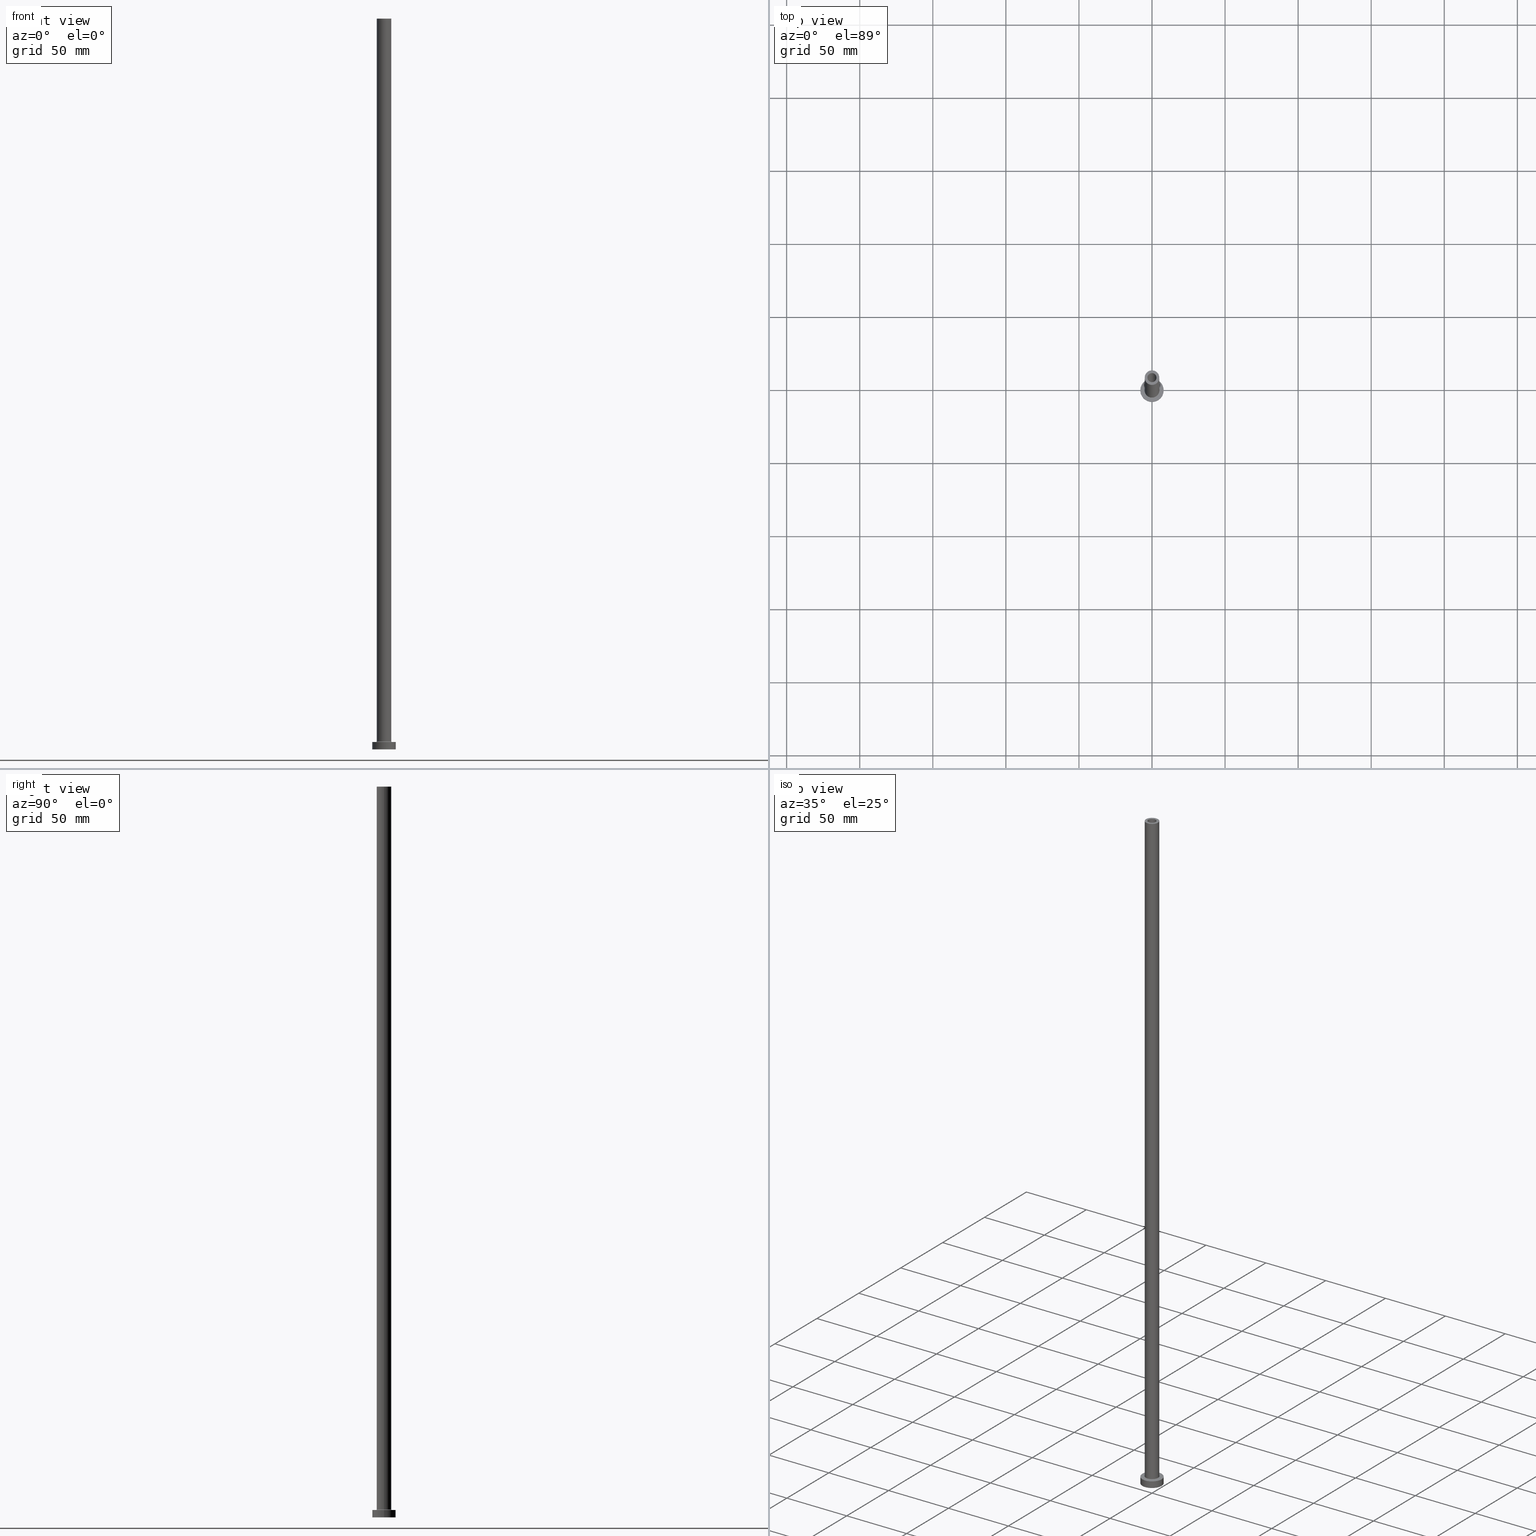
[diagram: canonical four-view strip — front | top / right | iso, engineering-drawing reading convention]
A machine part, canonical four-view strip (front | top / right | iso — engineering-drawing reading convention). The complete STEP part file that produces these views, byte-faithful:
ISO-10303-21;
HEADER;
FILE_DESCRIPTION (( 'STEP AP203' ),
    '1' );
FILE_NAME ('a1cd.STEP',
    '2023-02-13T14:30:09',
    ( '' ),
    ( '' ),
    'SwSTEP 2.0',
    'SolidWorks 2019',
    '' );
FILE_SCHEMA (( 'CONFIG_CONTROL_DESIGN' ));
ENDSEC;

DATA;
#1 = CARTESIAN_POINT ( 'NONE',  ( 0.000000000000000000, 0.000000000000000000, 500.0000000000000000 ) ) ;
#2 = DIRECTION ( 'NONE',  ( 0.000000000000000000, 0.000000000000000000, 1.000000000000000000 ) ) ;
#3 = APPROVAL ( #22, 'NEUR�EN�' ) ;
#4 = MANIFOLD_SOLID_BREP ( 'Odebrat vysunut�m4', #450 ) ;
#5 = DIRECTION ( 'NONE',  ( -0.000000000000000000, -0.000000000000000000, -1.000000000000000000 ) ) ;
#6 = CARTESIAN_POINT ( 'NONE',  ( 0.000000000000000000, 0.000000000000000000, 500.0000000000000000 ) ) ;
#7 = ADVANCED_FACE ( 'NONE', ( #281, #168 ), #81, .T. ) ;
#8 = CIRCLE ( 'NONE', #251, 3.250000000000000444 ) ;
#9 = DIRECTION ( 'NONE',  ( 1.000000000000000000, 0.000000000000000000, 0.000000000000000000 ) ) ;
#10 = FACE_OUTER_BOUND ( 'NONE', #208, .T. ) ;
#11 = DIRECTION ( 'NONE',  ( 0.000000000000000000, -1.000000000000000000, 0.000000000000000000 ) ) ;
#12 = CARTESIAN_POINT ( 'NONE',  ( 0.000000000000000000, 0.000000000000000000, 464.1923881554251352 ) ) ;
#13 = DIRECTION ( 'NONE',  ( 1.000000000000000000, 0.000000000000000000, 0.000000000000000000 ) ) ;
#14 = AXIS2_PLACEMENT_3D ( 'NONE', #85, #61, #207 ) ;
#15 = FACE_OUTER_BOUND ( 'NONE', #305, .T. ) ;
#16 = CIRCLE ( 'NONE', #276, 3.250000000000000444 ) ;
#17 = DATE_AND_TIME ( #375, #148 ) ;
#18 = ADVANCED_FACE ( 'NONE', ( #439 ), #443, .F. ) ;
#19 = DIRECTION ( 'NONE',  ( 0.000000000000000000, 0.000000000000000000, 1.000000000000000000 ) ) ;
#20 = ORIENTED_EDGE ( 'NONE', *, *, #445, .F. ) ;
#21 = DIRECTION ( 'NONE',  ( 1.000000000000000000, 0.000000000000000000, 0.000000000000000000 ) ) ;
#22 = APPROVAL_STATUS ( 'not_yet_approved' ) ;
#23 = AXIS2_PLACEMENT_3D ( 'NONE', #158, #210, #303 ) ;
#24 = CARTESIAN_POINT ( 'NONE',  ( 8.000000000000000000, 9.797174393178825657E-16, 0.000000000000000000 ) ) ;
#25 = ORIENTED_EDGE ( 'NONE', *, *, #415, .F. ) ;
#26 = EDGE_CURVE ( 'NONE', #379, #63, #93, .T. ) ;
#27 = DIRECTION ( 'NONE',  ( 1.000000000000000000, 0.000000000000000000, 0.000000000000000000 ) ) ;
#28 = AXIS2_PLACEMENT_3D ( 'NONE', #67, #250, #42 ) ;
#29 = CARTESIAN_POINT ( 'NONE',  ( 0.000000000000000000, 0.000000000000000000, 464.1923881554251352 ) ) ;
#30 = DIRECTION ( 'NONE',  ( 0.000000000000000000, 0.000000000000000000, 1.000000000000000000 ) ) ;
#31 = ORIENTED_EDGE ( 'NONE', *, *, #120, .T. ) ;
#32 = EDGE_CURVE ( 'NONE', #366, #131, #57, .T. ) ;
#33 = ORIENTED_EDGE ( 'NONE', *, *, #345, .T. ) ;
#34 = DIRECTION ( 'NONE',  ( 0.000000000000000000, 0.000000000000000000, -1.000000000000000000 ) ) ;
#35 = AXIS2_PLACEMENT_3D ( 'NONE', #167, #457, #347 ) ;
#36 = CYLINDRICAL_SURFACE ( 'NONE', #190, 5.000000000000000000 ) ;
#37 = ORIENTED_EDGE ( 'NONE', *, *, #189, .T. ) ;
#38 = ORGANIZATION ( 'NEUR�EN�', 'NEUR�EN�', '' ) ;
#39 = FACE_OUTER_BOUND ( 'NONE', #308, .T. ) ;
#40 = EDGE_CURVE ( 'NONE', #342, #172, #125, .T. ) ;
#41 = ORIENTED_EDGE ( 'NONE', *, *, #78, .T. ) ;
#42 = DIRECTION ( 'NONE',  ( -1.000000000000000000, 0.000000000000000000, 0.000000000000000000 ) ) ;
#43 = DIRECTION ( 'NONE',  ( 0.000000000000000000, 0.000000000000000000, -1.000000000000000000 ) ) ;
#44 = CARTESIAN_POINT ( 'NONE',  ( -3.250000000000000444, 0.000000000000000000, 464.1923881554251352 ) ) ;
#45 = DIRECTION ( 'NONE',  ( 0.000000000000000000, 0.000000000000000000, -1.000000000000000000 ) ) ;
#46 = CARTESIAN_POINT ( 'NONE',  ( 0.000000000000000000, 0.000000000000000000, 500.0000000000000000 ) ) ;
#47 = CYLINDRICAL_SURFACE ( 'NONE', #140, 8.000000000000000000 ) ;
#48 = DIRECTION ( 'NONE',  ( -1.000000000000000000, 1.224646799147351482E-16, 0.000000000000000000 ) ) ;
#49 = AXIS2_PLACEMENT_3D ( 'NONE', #273, #264, #275 ) ;
#50 = DATE_TIME_ROLE ( 'creation_date' ) ;
#51 = VECTOR ( 'NONE', #219, 1000.000000000000000 ) ;
#52 = CIRCLE ( 'NONE', #127, 3.100000000000000089 ) ;
#53 = PERSON_AND_ORGANIZATION_ROLE ( 'classification_officer' ) ;
#54 = EDGE_CURVE ( 'NONE', #291, #110, #327, .T. ) ;
#55 = ORIENTED_EDGE ( 'NONE', *, *, #54, .T. ) ;
#56 = PERSON_AND_ORGANIZATION ( #420, #38 ) ;
#57 = CIRCLE ( 'NONE', #410, 8.000000000000000000 ) ;
#58 = VERTEX_POINT ( 'NONE', #196 ) ;
#59 = PERSON_AND_ORGANIZATION ( #420, #38 ) ;
#60 = ORIENTED_EDGE ( 'NONE', *, *, #412, .F. ) ;
#61 = DIRECTION ( 'NONE',  ( 0.000000000000000000, 0.000000000000000000, 1.000000000000000000 ) ) ;
#62 = LINE ( 'NONE', #209, #230 ) ;
#63 = VERTEX_POINT ( 'NONE', #128 ) ;
#64 = AXIS2_PLACEMENT_3D ( 'NONE', #12, #328, #444 ) ;
#65 = VERTEX_POINT ( 'NONE', #115 ) ;
#66 = CARTESIAN_POINT ( 'NONE',  ( 0.000000000000000000, 0.000000000000000000, 5.000000000000000000 ) ) ;
#67 = CARTESIAN_POINT ( 'NONE',  ( 0.000000000000000000, 0.000000000000000000, 500.0000000000000000 ) ) ;
#68 = EDGE_LOOP ( 'NONE', ( #41, #141 ) ) ;
#69 = APPROVAL ( #126, 'NEUR�EN�' ) ;
#70 = CARTESIAN_POINT ( 'NONE',  ( -5.500000000000000000, 6.735557395310442023E-16, 5.500000000000005329 ) ) ;
#71 = VECTOR ( 'NONE', #373, 1000.000000000000000 ) ;
#72 = CYLINDRICAL_SURFACE ( 'NONE', #28, 3.100000000000000089 ) ;
#73 = CARTESIAN_POINT ( 'NONE',  ( 0.000000000000000000, 0.000000000000000000, 455.0000000000000000 ) ) ;
#74 = CARTESIAN_POINT ( 'NONE',  ( 0.000000000000000000, 0.000000000000000000, 500.0000000000000000 ) ) ;
#75 = LINE ( 'NONE', #116, #440 ) ;
#76 = ORIENTED_EDGE ( 'NONE', *, *, #98, .F. ) ;
#77 = DIRECTION ( 'NONE',  ( -1.000000000000000000, 0.000000000000000000, 0.000000000000000000 ) ) ;
#78 = EDGE_CURVE ( 'NONE', #220, #242, #176, .T. ) ;
#79 = CARTESIAN_POINT ( 'NONE',  ( 0.000000000000000000, 0.000000000000000000, 0.000000000000000000 ) ) ;
#80 = CC_DESIGN_PERSON_AND_ORGANIZATION_ASSIGNMENT ( #372, #53, ( #269 ) ) ;
#81 = PLANE ( 'NONE',  #82 ) ;
#82 = AXIS2_PLACEMENT_3D ( 'NONE', #165, #30, #203 ) ;
#83 = COORDINATED_UNIVERSAL_TIME_OFFSET ( 1, 0, .AHEAD. ) ;
#84 = CC_DESIGN_APPROVAL ( #69, ( #363 ) ) ;
#85 = CARTESIAN_POINT ( 'NONE',  ( 0.000000000000000000, 0.000000000000000000, 455.0000000000000000 ) ) ;
#86 = EDGE_CURVE ( 'NONE', #138, #242, #118, .T. ) ;
#87 = APPLICATION_PROTOCOL_DEFINITION ( 'international standard', 'config_control_design', 1994, #364 ) ;
#88 = AXIS2_PLACEMENT_3D ( 'NONE', #73, #224, #396 ) ;
#89 = ORIENTED_EDGE ( 'NONE', *, *, #26, .F. ) ;
#90 = DIRECTION ( 'NONE',  ( -0.000000000000000000, -0.000000000000000000, -1.000000000000000000 ) ) ;
#91 = APPROVAL_DATE_TIME ( #130, #3 ) ;
#92 = ORIENTED_EDGE ( 'NONE', *, *, #26, .T. ) ;
#93 = CIRCLE ( 'NONE', #49, 5.000000000000000000 ) ;
#94 = PERSON_AND_ORGANIZATION ( #420, #38 ) ;
#95 = DIRECTION ( 'NONE',  ( -1.000000000000000000, 0.000000000000000000, 0.000000000000000000 ) ) ;
#96 = VERTEX_POINT ( 'NONE', #259 ) ;
#97 = FACE_OUTER_BOUND ( 'NONE', #324, .T. ) ;
#98 = EDGE_CURVE ( 'NONE', #414, #58, #227, .T. ) ;
#99 = ORIENTED_EDGE ( 'NONE', *, *, #78, .F. ) ;
#100 = ORIENTED_EDGE ( 'NONE', *, *, #452, .F. ) ;
#101 = PRODUCT_DEFINITION_SHAPE ( 'NONE', 'NONE',  #363 ) ;
#102 = VECTOR ( 'NONE', #188, 1000.000000000000000 ) ;
#103 = ORIENTED_EDGE ( 'NONE', *, *, #412, .T. ) ;
#104 = ADVANCED_FACE ( 'NONE', ( #447 ), #395, .F. ) ;
#105 = PRODUCT ( 'a1cd', 'a1cd', '', ( #446 ) ) ;
#106 = EDGE_LOOP ( 'NONE', ( #418, #416, #37, #25 ) ) ;
#107 = CYLINDRICAL_SURFACE ( 'NONE', #336, 8.000000000000000000 ) ;
#108 = APPROVAL ( #369, 'NEUR�EN�' ) ;
#109 = DIRECTION ( 'NONE',  ( -0.000000000000000000, -0.000000000000000000, -1.000000000000000000 ) ) ;
#110 = VERTEX_POINT ( 'NONE', #24 ) ;
#111 = DIRECTION ( 'NONE',  ( 1.000000000000000000, 0.000000000000000000, 0.000000000000000000 ) ) ;
#112 = APPROVAL_PERSON_ORGANIZATION ( #200, #108, #437 ) ;
#113 = FACE_OUTER_BOUND ( 'NONE', #240, .T. ) ;
#114 = ORIENTED_EDGE ( 'NONE', *, *, #235, .T. ) ;
#115 = CARTESIAN_POINT ( 'NONE',  ( -3.250000000000000444, 0.000000000000000000, 0.000000000000000000 ) ) ;
#116 = CARTESIAN_POINT ( 'NONE',  ( -8.000000000000000000, 0.000000000000000000, 5.000000000000000000 ) ) ;
#117 = CIRCLE ( 'NONE', #164, 5.500000000000000000 ) ;
#118 = LINE ( 'NONE', #257, #102 ) ;
#119 = DIRECTION ( 'NONE',  ( -0.000000000000000000, -0.000000000000000000, -1.000000000000000000 ) ) ;
#120 = EDGE_CURVE ( 'NONE', #340, #194, #117, .T. ) ;
#121 = CARTESIAN_POINT ( 'NONE',  ( -5.500000000000000000, 6.735557395310442023E-16, 5.000000000000002665 ) ) ;
#122 = DATE_AND_TIME ( #334, #184 ) ;
#123 = DIRECTION ( 'NONE',  ( 0.000000000000000000, 0.000000000000000000, 1.000000000000000000 ) ) ;
#124 = EDGE_CURVE ( 'NONE', #172, #96, #62, .T. ) ;
#125 = CIRCLE ( 'NONE', #14, 3.250000000000000444 ) ;
#126 = APPROVAL_STATUS ( 'not_yet_approved' ) ;
#127 = AXIS2_PLACEMENT_3D ( 'NONE', #323, #2, #9 ) ;
#128 = CARTESIAN_POINT ( 'NONE',  ( 5.000000000000000000, 6.123233995736766282E-16, 5.500000000000005329 ) ) ;
#129 = ORIENTED_EDGE ( 'NONE', *, *, #40, .F. ) ;
#130 = DATE_AND_TIME ( #299, #451 ) ;
#131 = VERTEX_POINT ( 'NONE', #173 ) ;
#132 =( NAMED_UNIT ( * ) SI_UNIT ( $, .STERADIAN. ) SOLID_ANGLE_UNIT ( ) );
#133 = VECTOR ( 'NONE', #43, 1000.000000000000000 ) ;
#134 = CC_DESIGN_PERSON_AND_ORGANIZATION_ASSIGNMENT ( #232, #434, ( #247 ) ) ;
#135 = EDGE_LOOP ( 'NONE', ( #100, #377 ) ) ;
#136 = EDGE_CURVE ( 'NONE', #110, #291, #331, .T. ) ;
#137 = DIRECTION ( 'NONE',  ( 1.000000000000000000, 0.000000000000000000, 0.000000000000000000 ) ) ;
#138 = VERTEX_POINT ( 'NONE', #212 ) ;
#139 = FACE_OUTER_BOUND ( 'NONE', #144, .T. ) ;
#140 = AXIS2_PLACEMENT_3D ( 'NONE', #66, #5, #145 ) ;
#141 = ORIENTED_EDGE ( 'NONE', *, *, #445, .T. ) ;
#142 = PLANE ( 'NONE',  #35 ) ;
#143 = FACE_OUTER_BOUND ( 'NONE', #278, .T. ) ;
#144 = EDGE_LOOP ( 'NONE', ( #386, #461, #171, #55 ) ) ;
#145 = DIRECTION ( 'NONE',  ( -1.000000000000000000, 0.000000000000000000, 0.000000000000000000 ) ) ;
#146 = DIRECTION ( 'NONE',  ( -1.000000000000000000, 0.000000000000000000, 0.000000000000000000 ) ) ;
#147 = CARTESIAN_POINT ( 'NONE',  ( -3.250000000000000444, 0.000000000000000000, 455.0000000000000000 ) ) ;
#148 = LOCAL_TIME ( 15, 30, 9.000000000000000000, #166 ) ;
#149 = VECTOR ( 'NONE', #155, 1000.000000000000000 ) ;
#150 = CARTESIAN_POINT ( 'NONE',  ( 0.000000000000000000, 0.000000000000000000, 0.000000000000000000 ) ) ;
#151 = EDGE_CURVE ( 'NONE', #138, #211, #425, .T. ) ;
#152 = DIRECTION ( 'NONE',  ( 1.000000000000000000, 0.000000000000000000, -0.000000000000000000 ) ) ;
#153 = LINE ( 'NONE', #419, #51 ) ;
#154 = ADVANCED_FACE ( 'NONE', ( #139 ), #107, .T. ) ;
#155 = DIRECTION ( 'NONE',  ( -0.000000000000000000, -0.000000000000000000, -1.000000000000000000 ) ) ;
#156 = APPROVAL_DATE_TIME ( #365, #69 ) ;
#157 = ADVANCED_FACE ( 'NONE', ( #143 ), #458, .F. ) ;
#158 = CARTESIAN_POINT ( 'NONE',  ( 0.000000000000000000, 0.000000000000000000, 500.0000000000000000 ) ) ;
#159 = PERSON_AND_ORGANIZATION_ROLE ( 'design_owner' ) ;
#160 = COORDINATED_UNIVERSAL_TIME_OFFSET ( 1, 0, .AHEAD. ) ;
#161 = DIRECTION ( 'NONE',  ( 0.000000000000000000, 0.000000000000000000, 1.000000000000000000 ) ) ;
#162 = ORIENTED_EDGE ( 'NONE', *, *, #280, .T. ) ;
#163 = CIRCLE ( 'NONE', #343, 5.000000000000000000 ) ;
#164 = AXIS2_PLACEMENT_3D ( 'NONE', #246, #90, #381 ) ;
#165 = CARTESIAN_POINT ( 'NONE',  ( 0.000000000000000000, 0.000000000000000000, 500.0000000000000000 ) ) ;
#166 = COORDINATED_UNIVERSAL_TIME_OFFSET ( 1, 0, .AHEAD. ) ;
#167 = CARTESIAN_POINT ( 'NONE',  ( 0.000000000000000000, 0.000000000000000000, 0.000000000000000000 ) ) ;
#168 = FACE_OUTER_BOUND ( 'NONE', #313, .T. ) ;
#169 = CARTESIAN_POINT ( 'NONE',  ( 8.000000000000000000, 9.797174393178825657E-16, 5.000000000000000000 ) ) ;
#170 = CC_DESIGN_PERSON_AND_ORGANIZATION_ASSIGNMENT ( #59, #205, ( #363 ) ) ;
#171 = ORIENTED_EDGE ( 'NONE', *, *, #400, .T. ) ;
#172 = VERTEX_POINT ( 'NONE', #261 ) ;
#173 = CARTESIAN_POINT ( 'NONE',  ( 8.000000000000000000, 9.797174393178825657E-16, 5.000000000000000000 ) ) ;
#174 = LOCAL_TIME ( 15, 30, 9.000000000000000000, #294 ) ;
#175 = ADVANCED_FACE ( 'NONE', ( #312, #97 ), #142, .F. ) ;
#176 = CIRCLE ( 'NONE', #296, 3.100000000000000089 ) ;
#177 = EDGE_LOOP ( 'NONE', ( #428, #31 ) ) ;
#178 = ORIENTED_EDGE ( 'NONE', *, *, #361, .F. ) ;
#179 = DIRECTION ( 'NONE',  ( 0.000000000000000000, 0.000000000000000000, -1.000000000000000000 ) ) ;
#180 = CYLINDRICAL_SURFACE ( 'NONE', #214, 3.100000000000000089 ) ;
#181 = CC_DESIGN_DATE_AND_TIME_ASSIGNMENT ( #122, #263, ( #269 ) ) ;
#182 = CARTESIAN_POINT ( 'NONE',  ( 5.500000000000000000, 0.000000000000000000, 5.500000000000005329 ) ) ;
#183 = AXIS2_PLACEMENT_3D ( 'NONE', #6, #427, #307 ) ;
#184 = LOCAL_TIME ( 15, 30, 9.000000000000000000, #198 ) ;
#185 = ADVANCED_FACE ( 'NONE', ( #39 ), #36, .T. ) ;
#186 = DIRECTION ( 'NONE',  ( 0.000000000000000000, 0.000000000000000000, 1.000000000000000000 ) ) ;
#187 = FACE_OUTER_BOUND ( 'NONE', #335, .T. ) ;
#188 = DIRECTION ( 'NONE',  ( 0.000000000000000000, 0.000000000000000000, -1.000000000000000000 ) ) ;
#189 = EDGE_CURVE ( 'NONE', #96, #65, #8, .T. ) ;
#190 = AXIS2_PLACEMENT_3D ( 'NONE', #349, #356, #146 ) ;
#191 = DIRECTION ( 'NONE',  ( 0.000000000000000000, 0.000000000000000000, 1.000000000000000000 ) ) ;
#192 = AXIS2_PLACEMENT_3D ( 'NONE', #70, #222, #48 ) ;
#193 = DIRECTION ( 'NONE',  ( 1.000000000000000000, 0.000000000000000000, 0.000000000000000000 ) ) ;
#194 = VERTEX_POINT ( 'NONE', #319 ) ;
#195 = CARTESIAN_POINT ( 'NONE',  ( 3.100000000000000089, 3.796405077356793932E-16, 455.0000000000000000 ) ) ;
#196 = CARTESIAN_POINT ( 'NONE',  ( 5.000000000000000000, 6.123233995736766282E-16, 500.0000000000000000 ) ) ;
#197 = DIRECTION ( 'NONE',  ( 0.000000000000000000, 0.000000000000000000, 1.000000000000000000 ) ) ;
#198 = COORDINATED_UNIVERSAL_TIME_OFFSET ( 1, 0, .AHEAD. ) ;
#199 = ORIENTED_EDGE ( 'NONE', *, *, #32, .T. ) ;
#200 = PERSON_AND_ORGANIZATION ( #420, #38 ) ;
#201 = ADVANCED_FACE ( 'NONE', ( #350 ), #72, .F. ) ;
#202 = AXIS2_PLACEMENT_3D ( 'NONE', #433, #385, #215 ) ;
#203 = DIRECTION ( 'NONE',  ( 1.000000000000000000, 0.000000000000000000, -0.000000000000000000 ) ) ;
#204 = ORIENTED_EDGE ( 'NONE', *, *, #98, .T. ) ;
#205 = PERSON_AND_ORGANIZATION_ROLE ( 'creator' ) ;
#206 = CARTESIAN_POINT ( 'NONE',  ( 0.000000000000000000, 0.000000000000000000, 5.500000000000005329 ) ) ;
#207 = DIRECTION ( 'NONE',  ( 1.000000000000000000, 0.000000000000000000, 0.000000000000000000 ) ) ;
#208 = EDGE_LOOP ( 'NONE', ( #129, #348 ) ) ;
#209 = CARTESIAN_POINT ( 'NONE',  ( 3.250000000000000444, 3.980102097228898231E-16, 464.1923881554251352 ) ) ;
#210 = DIRECTION ( 'NONE',  ( 0.000000000000000000, 0.000000000000000000, 1.000000000000000000 ) ) ;
#211 = VERTEX_POINT ( 'NONE', #460 ) ;
#212 = CARTESIAN_POINT ( 'NONE',  ( 3.100000000000000089, 3.796405077356793932E-16, 500.0000000000000000 ) ) ;
#213 = CC_DESIGN_APPROVAL ( #3, ( #269 ) ) ;
#214 = AXIS2_PLACEMENT_3D ( 'NONE', #74, #45, #77 ) ;
#215 = DIRECTION ( 'NONE',  ( -1.000000000000000000, 0.000000000000000000, 0.000000000000000000 ) ) ;
#216 = FACE_OUTER_BOUND ( 'NONE', #315, .T. ) ;
#217 = DIRECTION ( 'NONE',  ( 1.000000000000000000, 0.000000000000000000, 0.000000000000000000 ) ) ;
#218 = AXIS2_PLACEMENT_3D ( 'NONE', #29, #448, #95 ) ;
#219 = DIRECTION ( 'NONE',  ( -0.000000000000000000, -0.000000000000000000, -1.000000000000000000 ) ) ;
#220 = VERTEX_POINT ( 'NONE', #248 ) ;
#221 = ADVANCED_FACE ( 'NONE', ( #216 ), #404, .F. ) ;
#222 = DIRECTION ( 'NONE',  ( 1.224646799147353207E-16, 1.000000000000000000, -0.000000000000000000 ) ) ;
#223 = DIRECTION ( 'NONE',  ( 0.000000000000000000, 0.000000000000000000, 1.000000000000000000 ) ) ;
#224 = DIRECTION ( 'NONE',  ( 0.000000000000000000, 0.000000000000000000, 1.000000000000000000 ) ) ;
#225 = DIRECTION ( 'NONE',  ( 0.000000000000000000, 0.000000000000000000, 1.000000000000000000 ) ) ;
#226 = ADVANCED_FACE ( 'NONE', ( #351, #10 ), #380, .F. ) ;
#227 = CIRCLE ( 'NONE', #23, 5.000000000000000000 ) ;
#228 = CARTESIAN_POINT ( 'NONE',  ( -8.000000000000000000, 0.000000000000000000, 0.000000000000000000 ) ) ;
#229 = AXIS2_PLACEMENT_3D ( 'NONE', #325, #293, #111 ) ;
#230 = VECTOR ( 'NONE', #34, 1000.000000000000000 ) ;
#231 = DIRECTION ( 'NONE',  ( 1.000000000000000000, 0.000000000000000000, 0.000000000000000000 ) ) ;
#232 = PERSON_AND_ORGANIZATION ( #420, #38 ) ;
#233 = DIRECTION ( 'NONE',  ( -1.000000000000000000, 0.000000000000000000, 0.000000000000000000 ) ) ;
#234 = CARTESIAN_POINT ( 'NONE',  ( 0.000000000000000000, 0.000000000000000000, 0.000000000000000000 ) ) ;
#235 = EDGE_CURVE ( 'NONE', #63, #379, #163, .T. ) ;
#236 = APPROVAL_ROLE ( '' ) ;
#237 = AXIS2_PLACEMENT_3D ( 'NONE', #432, #426, #152 ) ;
#238 = SECURITY_CLASSIFICATION_LEVEL ( 'unclassified' ) ;
#239 = EDGE_CURVE ( 'NONE', #58, #414, #390, .T. ) ;
#240 = EDGE_LOOP ( 'NONE', ( #316, #162, #114, #178 ) ) ;
#241 = ORIENTED_EDGE ( 'NONE', *, *, #124, .F. ) ;
#242 = VERTEX_POINT ( 'NONE', #195 ) ;
#243 = DIRECTION ( 'NONE',  ( 1.000000000000000000, 0.000000000000000000, 0.000000000000000000 ) ) ;
#244 = ORIENTED_EDGE ( 'NONE', *, *, #239, .T. ) ;
#245 = EDGE_CURVE ( 'NONE', #379, #340, #279, .T. ) ;
#246 = CARTESIAN_POINT ( 'NONE',  ( 0.000000000000000000, 0.000000000000000000, 5.000000000000000000 ) ) ;
#247 = PRODUCT_DEFINITION_FORMATION_WITH_SPECIFIED_SOURCE ( 'LIBOVOLN�', '', #105, .NOT_KNOWN. ) ;
#248 = CARTESIAN_POINT ( 'NONE',  ( -3.100000000000000089, 0.000000000000000000, 455.0000000000000000 ) ) ;
#249 = EDGE_LOOP ( 'NONE', ( #337, #339, #270, #387 ) ) ;
#250 = DIRECTION ( 'NONE',  ( 0.000000000000000000, 0.000000000000000000, -1.000000000000000000 ) ) ;
#251 = AXIS2_PLACEMENT_3D ( 'NONE', #388, #393, #137 ) ;
#252 = PLANE ( 'NONE',  #237 ) ;
#253 = AXIS2_PLACEMENT_3D ( 'NONE', #182, #11, #179 ) ;
#254 = CARTESIAN_POINT ( 'NONE',  ( 0.000000000000000000, 0.000000000000000000, 455.0000000000000000 ) ) ;
#255 = DIRECTION ( 'NONE',  ( 0.000000000000000000, 0.000000000000000000, -1.000000000000000000 ) ) ;
#256 = AXIS2_PLACEMENT_3D ( 'NONE', #206, #161, #217 ) ;
#257 = CARTESIAN_POINT ( 'NONE',  ( 3.100000000000000089, 3.796405077356793932E-16, 500.0000000000000000 ) ) ;
#258 = CC_DESIGN_SECURITY_CLASSIFICATION ( #269, ( #247 ) ) ;
#259 = CARTESIAN_POINT ( 'NONE',  ( 3.250000000000000444, 3.980102097228898231E-16, 0.000000000000000000 ) ) ;
#260 = PERSON_AND_ORGANIZATION_ROLE ( 'creator' ) ;
#261 = CARTESIAN_POINT ( 'NONE',  ( 3.250000000000000444, 3.980102097228898231E-16, 455.0000000000000000 ) ) ;
#262 = DESIGN_CONTEXT ( 'detailed design', #268, 'design' ) ;
#263 = DATE_TIME_ROLE ( 'classification_date' ) ;
#264 = DIRECTION ( 'NONE',  ( 0.000000000000000000, 0.000000000000000000, 1.000000000000000000 ) ) ;
#265 = ORIENTED_EDGE ( 'NONE', *, *, #415, .T. ) ;
#266 = CALENDAR_DATE ( 2023, 13, 2 ) ;
#267 =( GEOMETRIC_REPRESENTATION_CONTEXT ( 3 ) GLOBAL_UNCERTAINTY_ASSIGNED_CONTEXT ( ( #374 ) ) GLOBAL_UNIT_ASSIGNED_CONTEXT ( ( #399, #449, #132 ) ) REPRESENTATION_CONTEXT ( 'NONE', 'WORKASPACE' ) );
#268 = APPLICATION_CONTEXT ( 'configuration controlled 3d designs of mechanical parts and assemblies' ) ;
#269 = SECURITY_CLASSIFICATION ( '', '', #238 ) ;
#270 = ORIENTED_EDGE ( 'NONE', *, *, #435, .T. ) ;
#271 = SHAPE_DEFINITION_REPRESENTATION ( #101, #304 ) ;
#272 = ORIENTED_EDGE ( 'NONE', *, *, #397, .F. ) ;
#273 = CARTESIAN_POINT ( 'NONE',  ( 0.000000000000000000, 0.000000000000000000, 5.500000000000005329 ) ) ;
#274 = DIRECTION ( 'NONE',  ( 0.000000000000000000, 0.000000000000000000, 1.000000000000000000 ) ) ;
#275 = DIRECTION ( 'NONE',  ( 1.000000000000000000, 0.000000000000000000, 0.000000000000000000 ) ) ;
#276 = AXIS2_PLACEMENT_3D ( 'NONE', #150, #119, #430 ) ;
#277 = ORIENTED_EDGE ( 'NONE', *, *, #397, .T. ) ;
#278 = EDGE_LOOP ( 'NONE', ( #241, #33, #265, #311 ) ) ;
#279 = CIRCLE ( 'NONE', #192, 0.5000000000000004441 ) ;
#280 = EDGE_CURVE ( 'NONE', #58, #63, #153, .T. ) ;
#281 = FACE_BOUND ( 'NONE', #300, .T. ) ;
#282 = CARTESIAN_POINT ( 'NONE',  ( 0.000000000000000000, 0.000000000000000000, 5.000000000000000000 ) ) ;
#283 = EDGE_CURVE ( 'NONE', #131, #110, #341, .T. ) ;
#284 = CARTESIAN_POINT ( 'NONE',  ( 0.000000000000000000, 0.000000000000000000, 5.500000000000005329 ) ) ;
#285 = ORIENTED_EDGE ( 'NONE', *, *, #400, .F. ) ;
#286 = CARTESIAN_POINT ( 'NONE',  ( 0.000000000000000000, 0.000000000000000000, 5.000000000000000000 ) ) ;
#287 = EDGE_CURVE ( 'NONE', #211, #138, #359, .T. ) ;
#288 = CC_DESIGN_APPROVAL ( #108, ( #247 ) ) ;
#289 = CARTESIAN_POINT ( 'NONE',  ( -5.000000000000000000, 0.000000000000000000, 5.500000000000005329 ) ) ;
#290 = LINE ( 'NONE', #318, #391 ) ;
#291 = VERTEX_POINT ( 'NONE', #228 ) ;
#292 = FACE_BOUND ( 'NONE', #177, .T. ) ;
#293 = DIRECTION ( 'NONE',  ( -0.000000000000000000, -0.000000000000000000, -1.000000000000000000 ) ) ;
#294 = COORDINATED_UNIVERSAL_TIME_OFFSET ( 1, 0, .AHEAD. ) ;
#295 = CALENDAR_DATE ( 2023, 13, 2 ) ;
#296 = AXIS2_PLACEMENT_3D ( 'NONE', #254, #186, #13 ) ;
#297 = ORIENTED_EDGE ( 'NONE', *, *, #136, .T. ) ;
#298 = ORIENTED_EDGE ( 'NONE', *, *, #283, .T. ) ;
#299 = CALENDAR_DATE ( 2023, 13, 2 ) ;
#300 = EDGE_LOOP ( 'NONE', ( #389, #442 ) ) ;
#301 = CC_DESIGN_DATE_AND_TIME_ASSIGNMENT ( #17, #50, ( #363 ) ) ;
#302 = ORIENTED_EDGE ( 'NONE', *, *, #287, .T. ) ;
#303 = DIRECTION ( 'NONE',  ( 1.000000000000000000, 0.000000000000000000, 0.000000000000000000 ) ) ;
#304 = ADVANCED_BREP_SHAPE_REPRESENTATION ( 'a1cd', ( #4, #368 ), #267 ) ;
#305 = EDGE_LOOP ( 'NONE', ( #199, #103 ) ) ;
#306 = ADVANCED_FACE ( 'NONE', ( #321 ), #47, .T. ) ;
#307 = DIRECTION ( 'NONE',  ( 1.000000000000000000, 0.000000000000000000, 0.000000000000000000 ) ) ;
#308 = EDGE_LOOP ( 'NONE', ( #320, #76, #459, #92 ) ) ;
#309 = AXIS2_PLACEMENT_3D ( 'NONE', #286, #358, #392 ) ;
#310 = AXIS2_PLACEMENT_3D ( 'NONE', #284, #123, #317 ) ;
#311 = ORIENTED_EDGE ( 'NONE', *, *, #452, .T. ) ;
#312 = FACE_BOUND ( 'NONE', #135, .T. ) ;
#313 = EDGE_LOOP ( 'NONE', ( #204, #244 ) ) ;
#314 = ADVANCED_FACE ( 'NONE', ( #292, #15 ), #252, .T. ) ;
#315 = EDGE_LOOP ( 'NONE', ( #89, #357, #421, #436 ) ) ;
#316 = ORIENTED_EDGE ( 'NONE', *, *, #239, .F. ) ;
#317 = DIRECTION ( 'NONE',  ( 1.000000000000000000, 0.000000000000000000, 0.000000000000000000 ) ) ;
#318 = CARTESIAN_POINT ( 'NONE',  ( -3.100000000000000089, 0.000000000000000000, 500.0000000000000000 ) ) ;
#319 = CARTESIAN_POINT ( 'NONE',  ( 5.500000000000000000, 0.000000000000000000, 5.000000000000002665 ) ) ;
#320 = ORIENTED_EDGE ( 'NONE', *, *, #280, .F. ) ;
#321 = FACE_OUTER_BOUND ( 'NONE', #407, .T. ) ;
#322 = AXIS2_PLACEMENT_3D ( 'NONE', #46, #225, #231 ) ;
#323 = CARTESIAN_POINT ( 'NONE',  ( 0.000000000000000000, 0.000000000000000000, 455.0000000000000000 ) ) ;
#324 = EDGE_LOOP ( 'NONE', ( #456, #413 ) ) ;
#325 = CARTESIAN_POINT ( 'NONE',  ( 0.000000000000000000, 0.000000000000000000, 5.000000000000000000 ) ) ;
#326 = CARTESIAN_POINT ( 'NONE',  ( -8.000000000000000000, 0.000000000000000000, 5.000000000000000000 ) ) ;
#327 = CIRCLE ( 'NONE', #438, 8.000000000000000000 ) ;
#328 = DIRECTION ( 'NONE',  ( 0.000000000000000000, 0.000000000000000000, -1.000000000000000000 ) ) ;
#329 = AXIS2_PLACEMENT_3D ( 'NONE', #455, #197, #21 ) ;
#330 = APPROVAL_ROLE ( '' ) ;
#331 = CIRCLE ( 'NONE', #329, 8.000000000000000000 ) ;
#332 = ORIENTED_EDGE ( 'NONE', *, *, #86, .F. ) ;
#333 = EDGE_LOOP ( 'NONE', ( #302, #382, #99, #272 ) ) ;
#334 = CALENDAR_DATE ( 2023, 13, 2 ) ;
#335 = EDGE_LOOP ( 'NONE', ( #332, #453, #277, #20 ) ) ;
#336 = AXIS2_PLACEMENT_3D ( 'NONE', #282, #109, #233 ) ;
#337 = ORIENTED_EDGE ( 'NONE', *, *, #245, .F. ) ;
#338 = DATE_AND_TIME ( #266, #174 ) ;
#339 = ORIENTED_EDGE ( 'NONE', *, *, #235, .F. ) ;
#340 = VERTEX_POINT ( 'NONE', #121 ) ;
#341 = LINE ( 'NONE', #169, #71 ) ;
#342 = VERTEX_POINT ( 'NONE', #147 ) ;
#343 = AXIS2_PLACEMENT_3D ( 'NONE', #424, #378, #27 ) ;
#344 = AXIS2_PLACEMENT_3D ( 'NONE', #1, #223, #352 ) ;
#345 = EDGE_CURVE ( 'NONE', #172, #342, #398, .T. ) ;
#346 = LINE ( 'NONE', #44, #133 ) ;
#347 = DIRECTION ( 'NONE',  ( 1.000000000000000000, 0.000000000000000000, -0.000000000000000000 ) ) ;
#348 = ORIENTED_EDGE ( 'NONE', *, *, #345, .F. ) ;
#349 = CARTESIAN_POINT ( 'NONE',  ( 0.000000000000000000, 0.000000000000000000, 500.0000000000000000 ) ) ;
#350 = FACE_OUTER_BOUND ( 'NONE', #333, .T. ) ;
#351 = FACE_BOUND ( 'NONE', #68, .T. ) ;
#352 = DIRECTION ( 'NONE',  ( 1.000000000000000000, 0.000000000000000000, 0.000000000000000000 ) ) ;
#353 = DIRECTION ( 'NONE',  ( 1.000000000000000000, 0.000000000000000000, -0.000000000000000000 ) ) ;
#354 = PRODUCT_RELATED_PRODUCT_CATEGORY ( 'detail', '', ( #105 ) ) ;
#355 = DIRECTION ( 'NONE',  ( -0.000000000000000000, -0.000000000000000000, -1.000000000000000000 ) ) ;
#356 = DIRECTION ( 'NONE',  ( -0.000000000000000000, -0.000000000000000000, -1.000000000000000000 ) ) ;
#357 = ORIENTED_EDGE ( 'NONE', *, *, #245, .T. ) ;
#358 = DIRECTION ( 'NONE',  ( 0.000000000000000000, 0.000000000000000000, 1.000000000000000000 ) ) ;
#359 = CIRCLE ( 'NONE', #322, 3.100000000000000089 ) ;
#360 = CYLINDRICAL_SURFACE ( 'NONE', #202, 5.000000000000000000 ) ;
#361 = EDGE_CURVE ( 'NONE', #414, #379, #362, .T. ) ;
#362 = LINE ( 'NONE', #422, #149 ) ;
#363 = PRODUCT_DEFINITION ( 'NEZN�M�', '', #247, #262 ) ;
#364 = APPLICATION_CONTEXT ( 'configuration controlled 3d designs of mechanical parts and assemblies' ) ;
#365 = DATE_AND_TIME ( #295, #423 ) ;
#366 = VERTEX_POINT ( 'NONE', #326 ) ;
#367 = EDGE_CURVE ( 'NONE', #194, #340, #370, .T. ) ;
#368 = AXIS2_PLACEMENT_3D ( 'NONE', #79, #274, #193 ) ;
#369 = APPROVAL_STATUS ( 'not_yet_approved' ) ;
#370 = CIRCLE ( 'NONE', #229, 5.500000000000000000 ) ;
#371 = DIRECTION ( 'NONE',  ( 1.000000000000000000, 0.000000000000000000, 0.000000000000000000 ) ) ;
#372 = PERSON_AND_ORGANIZATION ( #420, #38 ) ;
#373 = DIRECTION ( 'NONE',  ( -0.000000000000000000, -0.000000000000000000, -1.000000000000000000 ) ) ;
#374 = UNCERTAINTY_MEASURE_WITH_UNIT (LENGTH_MEASURE( 1.000000000000000082E-05 ), #399, 'distance_accuracy_value', 'NONE');
#375 = CALENDAR_DATE ( 2023, 13, 2 ) ;
#376 = APPROVAL_PERSON_ORGANIZATION ( #401, #3, #236 ) ;
#377 = ORIENTED_EDGE ( 'NONE', *, *, #189, .F. ) ;
#378 = DIRECTION ( 'NONE',  ( 0.000000000000000000, 0.000000000000000000, 1.000000000000000000 ) ) ;
#379 = VERTEX_POINT ( 'NONE', #289 ) ;
#380 = PLANE ( 'NONE',  #417 ) ;
#381 = DIRECTION ( 'NONE',  ( 1.000000000000000000, 0.000000000000000000, 0.000000000000000000 ) ) ;
#382 = ORIENTED_EDGE ( 'NONE', *, *, #86, .T. ) ;
#383 = ADVANCED_FACE ( 'NONE', ( #113 ), #360, .T. ) ;
#384 = APPROVAL_PERSON_ORGANIZATION ( #94, #69, #330 ) ;
#385 = DIRECTION ( 'NONE',  ( -0.000000000000000000, -0.000000000000000000, -1.000000000000000000 ) ) ;
#386 = ORIENTED_EDGE ( 'NONE', *, *, #283, .F. ) ;
#387 = ORIENTED_EDGE ( 'NONE', *, *, #120, .F. ) ;
#388 = CARTESIAN_POINT ( 'NONE',  ( 0.000000000000000000, 0.000000000000000000, 0.000000000000000000 ) ) ;
#389 = ORIENTED_EDGE ( 'NONE', *, *, #287, .F. ) ;
#390 = CIRCLE ( 'NONE', #183, 5.000000000000000000 ) ;
#391 = VECTOR ( 'NONE', #255, 1000.000000000000000 ) ;
#392 = DIRECTION ( 'NONE',  ( 1.000000000000000000, 0.000000000000000000, 0.000000000000000000 ) ) ;
#393 = DIRECTION ( 'NONE',  ( -0.000000000000000000, -0.000000000000000000, -1.000000000000000000 ) ) ;
#394 = CARTESIAN_POINT ( 'NONE',  ( -5.000000000000000000, 0.000000000000000000, 500.0000000000000000 ) ) ;
#395 = TOROIDAL_SURFACE ( 'NONE', #256, 5.500000000000000000, 0.5000000000000000000 ) ;
#396 = DIRECTION ( 'NONE',  ( 1.000000000000000000, 0.000000000000000000, 0.000000000000000000 ) ) ;
#397 = EDGE_CURVE ( 'NONE', #211, #220, #290, .T. ) ;
#398 = CIRCLE ( 'NONE', #88, 3.250000000000000444 ) ;
#399 =( LENGTH_UNIT ( ) NAMED_UNIT ( * ) SI_UNIT ( .MILLI., .METRE. ) );
#400 = EDGE_CURVE ( 'NONE', #366, #291, #75, .T. ) ;
#401 = PERSON_AND_ORGANIZATION ( #420, #38 ) ;
#402 = DIRECTION ( 'NONE',  ( 0.000000000000000000, 0.000000000000000000, 1.000000000000000000 ) ) ;
#403 = CC_DESIGN_PERSON_AND_ORGANIZATION_ASSIGNMENT ( #405, #260, ( #247 ) ) ;
#404 = TOROIDAL_SURFACE ( 'NONE', #310, 5.500000000000000000, 0.5000000000000000000 ) ;
#405 = PERSON_AND_ORGANIZATION ( #420, #38 ) ;
#406 = CIRCLE ( 'NONE', #309, 8.000000000000000000 ) ;
#407 = EDGE_LOOP ( 'NONE', ( #60, #298, #297, #285 ) ) ;
#408 = CARTESIAN_POINT ( 'NONE',  ( 0.000000000000000000, 0.000000000000000000, 455.0000000000000000 ) ) ;
#409 = APPLICATION_PROTOCOL_DEFINITION ( 'international standard', 'config_control_design', 1994, #268 ) ;
#410 = AXIS2_PLACEMENT_3D ( 'NONE', #411, #402, #243 ) ;
#411 = CARTESIAN_POINT ( 'NONE',  ( 0.000000000000000000, 0.000000000000000000, 5.000000000000000000 ) ) ;
#412 = EDGE_CURVE ( 'NONE', #131, #366, #406, .T. ) ;
#413 = ORIENTED_EDGE ( 'NONE', *, *, #136, .F. ) ;
#414 = VERTEX_POINT ( 'NONE', #394 ) ;
#415 = EDGE_CURVE ( 'NONE', #342, #65, #346, .T. ) ;
#416 = ORIENTED_EDGE ( 'NONE', *, *, #124, .T. ) ;
#417 = AXIS2_PLACEMENT_3D ( 'NONE', #408, #191, #353 ) ;
#418 = ORIENTED_EDGE ( 'NONE', *, *, #40, .T. ) ;
#419 = CARTESIAN_POINT ( 'NONE',  ( 5.000000000000000000, 6.123233995736766282E-16, 500.0000000000000000 ) ) ;
#420 = PERSON ( 'NEUR�EN�', 'NEUR�EN�', 'NEUR�EN�', ('NEUR�EN�'), ('NEUR�EN�'), ('NEUR�EN�') ) ;
#421 = ORIENTED_EDGE ( 'NONE', *, *, #367, .F. ) ;
#422 = CARTESIAN_POINT ( 'NONE',  ( -5.000000000000000000, 0.000000000000000000, 500.0000000000000000 ) ) ;
#423 = LOCAL_TIME ( 15, 30, 9.000000000000000000, #83 ) ;
#424 = CARTESIAN_POINT ( 'NONE',  ( 0.000000000000000000, 0.000000000000000000, 5.500000000000005329 ) ) ;
#425 = CIRCLE ( 'NONE', #344, 3.100000000000000089 ) ;
#426 = DIRECTION ( 'NONE',  ( 0.000000000000000000, 0.000000000000000000, 1.000000000000000000 ) ) ;
#427 = DIRECTION ( 'NONE',  ( 0.000000000000000000, 0.000000000000000000, 1.000000000000000000 ) ) ;
#428 = ORIENTED_EDGE ( 'NONE', *, *, #367, .T. ) ;
#429 = ADVANCED_FACE ( 'NONE', ( #187 ), #180, .F. ) ;
#430 = DIRECTION ( 'NONE',  ( 1.000000000000000000, 0.000000000000000000, 0.000000000000000000 ) ) ;
#431 = CC_DESIGN_PERSON_AND_ORGANIZATION_ASSIGNMENT ( #56, #159, ( #105 ) ) ;
#432 = CARTESIAN_POINT ( 'NONE',  ( 0.000000000000000000, 0.000000000000000000, 5.000000000000000000 ) ) ;
#433 = CARTESIAN_POINT ( 'NONE',  ( 0.000000000000000000, 0.000000000000000000, 500.0000000000000000 ) ) ;
#434 = PERSON_AND_ORGANIZATION_ROLE ( 'design_supplier' ) ;
#435 = EDGE_CURVE ( 'NONE', #63, #194, #454, .T. ) ;
#436 = ORIENTED_EDGE ( 'NONE', *, *, #435, .F. ) ;
#437 = APPROVAL_ROLE ( '' ) ;
#438 = AXIS2_PLACEMENT_3D ( 'NONE', #234, #19, #371 ) ;
#439 = FACE_OUTER_BOUND ( 'NONE', #106, .T. ) ;
#440 = VECTOR ( 'NONE', #355, 1000.000000000000000 ) ;
#441 = APPROVAL_DATE_TIME ( #338, #108 ) ;
#442 = ORIENTED_EDGE ( 'NONE', *, *, #151, .F. ) ;
#443 = CYLINDRICAL_SURFACE ( 'NONE', #218, 3.250000000000000444 ) ;
#444 = DIRECTION ( 'NONE',  ( -1.000000000000000000, 0.000000000000000000, 0.000000000000000000 ) ) ;
#445 = EDGE_CURVE ( 'NONE', #242, #220, #52, .T. ) ;
#446 = MECHANICAL_CONTEXT ( 'NONE', #364, 'mechanical' ) ;
#447 = FACE_OUTER_BOUND ( 'NONE', #249, .T. ) ;
#448 = DIRECTION ( 'NONE',  ( 0.000000000000000000, 0.000000000000000000, -1.000000000000000000 ) ) ;
#449 =( NAMED_UNIT ( * ) PLANE_ANGLE_UNIT ( ) SI_UNIT ( $, .RADIAN. ) );
#450 = CLOSED_SHELL ( 'NONE', ( #201, #18, #221, #383, #306, #154, #314, #175, #185, #7, #104, #157, #226, #429 ) ) ;
#451 = LOCAL_TIME ( 15, 30, 9.000000000000000000, #160 ) ;
#452 = EDGE_CURVE ( 'NONE', #65, #96, #16, .T. ) ;
#453 = ORIENTED_EDGE ( 'NONE', *, *, #151, .T. ) ;
#454 = CIRCLE ( 'NONE', #253, 0.5000000000000004441 ) ;
#455 = CARTESIAN_POINT ( 'NONE',  ( 0.000000000000000000, 0.000000000000000000, 0.000000000000000000 ) ) ;
#456 = ORIENTED_EDGE ( 'NONE', *, *, #54, .F. ) ;
#457 = DIRECTION ( 'NONE',  ( 0.000000000000000000, 0.000000000000000000, 1.000000000000000000 ) ) ;
#458 = CYLINDRICAL_SURFACE ( 'NONE', #64, 3.250000000000000444 ) ;
#459 = ORIENTED_EDGE ( 'NONE', *, *, #361, .T. ) ;
#460 = CARTESIAN_POINT ( 'NONE',  ( -3.100000000000000089, 0.000000000000000000, 500.0000000000000000 ) ) ;
#461 = ORIENTED_EDGE ( 'NONE', *, *, #32, .F. ) ;
ENDSEC;
END-ISO-10303-21;
